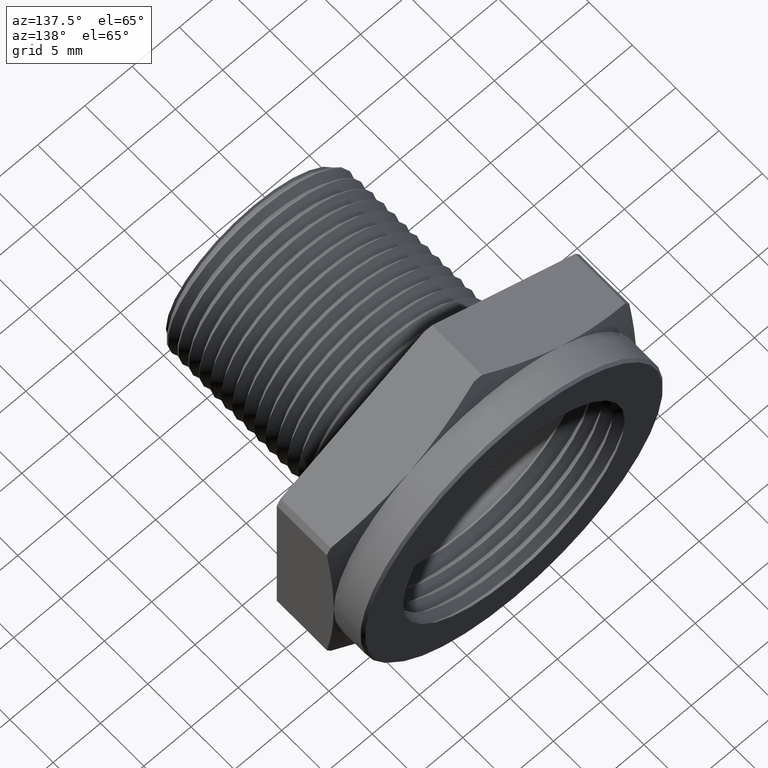
[diagram: clean part render]
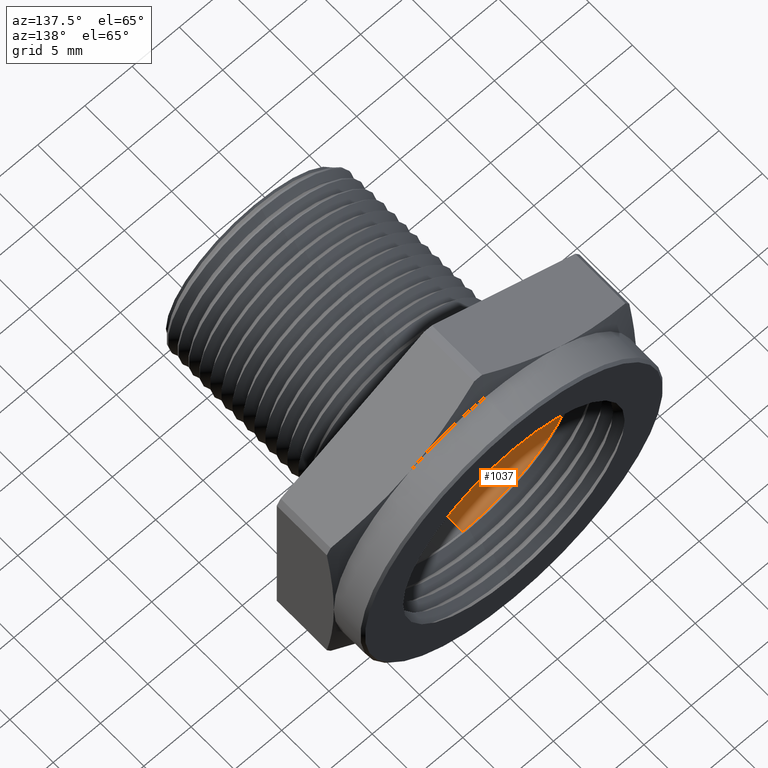
[diagram: same view with one face highlighted and labeled with its STEP entity id]
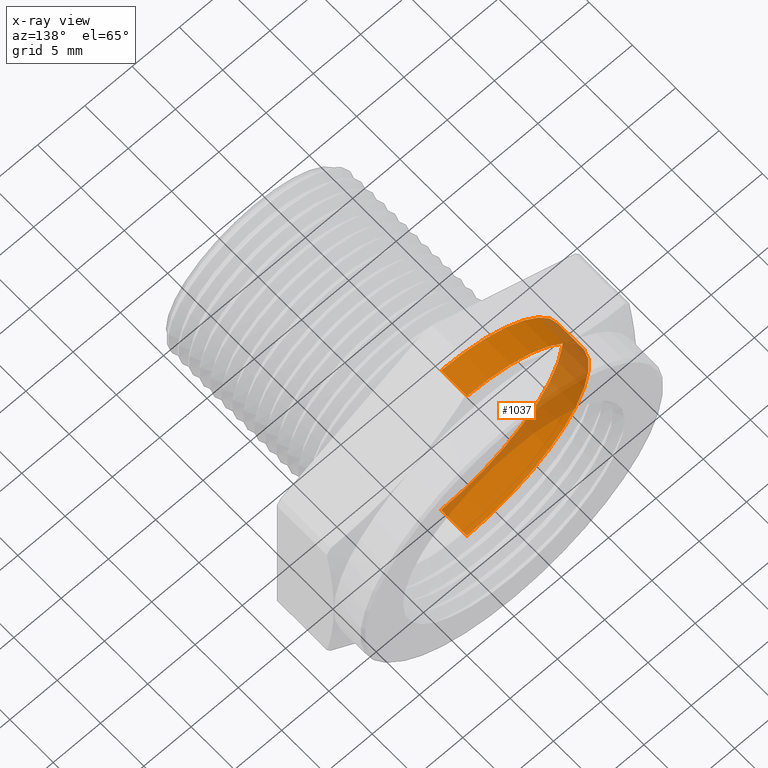
[diagram: x-ray of the same camera — body ghosted, the highlighted face saturated]
A machine part, auxiliary view. The second image highlights one B-rep face of the part: STEP entity #1037.
The next image is the same camera in x-ray: the body ghosted, the highlighted face saturated — about 33% of this face is hidden behind the body in this view.
In plain terms, the highlighted cylindrical surface (partial cylindrical patch) has radius 12.8816 mm, axis along (-0, -1, -0).
Its self-contained STEP definition (entity closure, byte-faithful):
#504 = EDGE_CURVE ( 'NONE', #510, #509, #1812, .T. ) ;
#505 = ORIENTED_EDGE ( 'NONE', *, *, #507, .F. ) ;
#506 = VERTEX_POINT ( 'NONE', #1807 ) ;
#507 = EDGE_CURVE ( 'NONE', #506, #509, #1806, .T. ) ;
#508 = ORIENTED_EDGE ( 'NONE', *, *, #504, .T. ) ;
#509 = VERTEX_POINT ( 'NONE', #1802 ) ;
#510 = VERTEX_POINT ( 'NONE', #1801 ) ;
#511 = EDGE_CURVE ( 'NONE', #965, #510, #1800, .T. ) ;
#512 = ORIENTED_EDGE ( 'NONE', *, *, #511, .T. ) ;
#963 = EDGE_LOOP ( 'NONE', ( #1028, #512, #508, #505 ) ) ;
#965 = VERTEX_POINT ( 'NONE', #2729 ) ;
#1028 = ORIENTED_EDGE ( 'NONE', *, *, #1029, .F. ) ;
#1029 = EDGE_CURVE ( 'NONE', #965, #506, #2771, .T. ) ;
#1037 = ADVANCED_FACE ( 'NONE', ( #2817 ), #2816, .F. ) ;
#1797 = DIRECTION ( 'NONE',  ( -0.0000000000000000000, -1.000000000000000000, -0.0000000000000000000 ) ) ;
#1798 = VECTOR ( 'NONE', #1797, 39.37007874015748100 ) ;
#1799 = CARTESIAN_POINT ( 'NONE',  ( 6.210796241875801000E-017, 0.0000000000000000000, 0.5071499999999999900 ) ) ;
#1800 = LINE ( 'NONE', #1799, #1798 ) ;
#1801 = CARTESIAN_POINT ( 'NONE',  ( 6.210796241875801000E-017, 0.8489999999999999800, 0.5071499999999999900 ) ) ;
#1802 = CARTESIAN_POINT ( 'NONE',  ( 0.0000000000000000000, 0.8489999999999999800, -0.5071499999999999900 ) ) ;
#1803 = DIRECTION ( 'NONE',  ( -0.0000000000000000000, -1.000000000000000000, -0.0000000000000000000 ) ) ;
#1804 = VECTOR ( 'NONE', #1803, 39.37007874015748100 ) ;
#1805 = CARTESIAN_POINT ( 'NONE',  ( 0.0000000000000000000, 0.0000000000000000000, -0.5071499999999999900 ) ) ;
#1806 = LINE ( 'NONE', #1805, #1804 ) ;
#1807 = CARTESIAN_POINT ( 'NONE',  ( 0.0000000000000000000, 0.9670000000000000800, -0.5071499999999999900 ) ) ;
#1808 = DIRECTION ( 'NONE',  ( 0.0000000000000000000, 0.0000000000000000000, -1.000000000000000000 ) ) ;
#1809 = DIRECTION ( 'NONE',  ( -0.0000000000000000000, -1.000000000000000000, -0.0000000000000000000 ) ) ;
#1810 = CARTESIAN_POINT ( 'NONE',  ( 0.0000000000000000000, 0.8489999999999999800, 0.0000000000000000000 ) ) ;
#1811 = AXIS2_PLACEMENT_3D ( 'NONE', #1810, #1809, #1808 ) ;
#1812 = CIRCLE ( 'NONE', #1811, 0.5071499999999999900 ) ;
#2729 = CARTESIAN_POINT ( 'NONE',  ( 6.210796241875801000E-017, 0.9670000000000000800, 0.5071499999999999900 ) ) ;
#2767 = DIRECTION ( 'NONE',  ( 0.0000000000000000000, 0.0000000000000000000, -1.000000000000000000 ) ) ;
#2768 = DIRECTION ( 'NONE',  ( -0.0000000000000000000, -1.000000000000000000, -0.0000000000000000000 ) ) ;
#2769 = CARTESIAN_POINT ( 'NONE',  ( 0.0000000000000000000, 0.9670000000000000800, 0.0000000000000000000 ) ) ;
#2770 = AXIS2_PLACEMENT_3D ( 'NONE', #2769, #2768, #2767 ) ;
#2771 = CIRCLE ( 'NONE', #2770, 0.5071499999999999900 ) ;
#2805 = DIRECTION ( 'NONE',  ( 0.0000000000000000000, 0.0000000000000000000, -1.000000000000000000 ) ) ;
#2806 = DIRECTION ( 'NONE',  ( -0.0000000000000000000, -1.000000000000000000, -0.0000000000000000000 ) ) ;
#2807 = CARTESIAN_POINT ( 'NONE',  ( 0.0000000000000000000, 0.0000000000000000000, 0.0000000000000000000 ) ) ;
#2808 = AXIS2_PLACEMENT_3D ( 'NONE', #2807, #2806, #2805 ) ;
#2816 = CYLINDRICAL_SURFACE ( 'NONE', #2808, 0.5071499999999999900 ) ;
#2817 = FACE_OUTER_BOUND ( 'NONE', #963, .T. ) ;